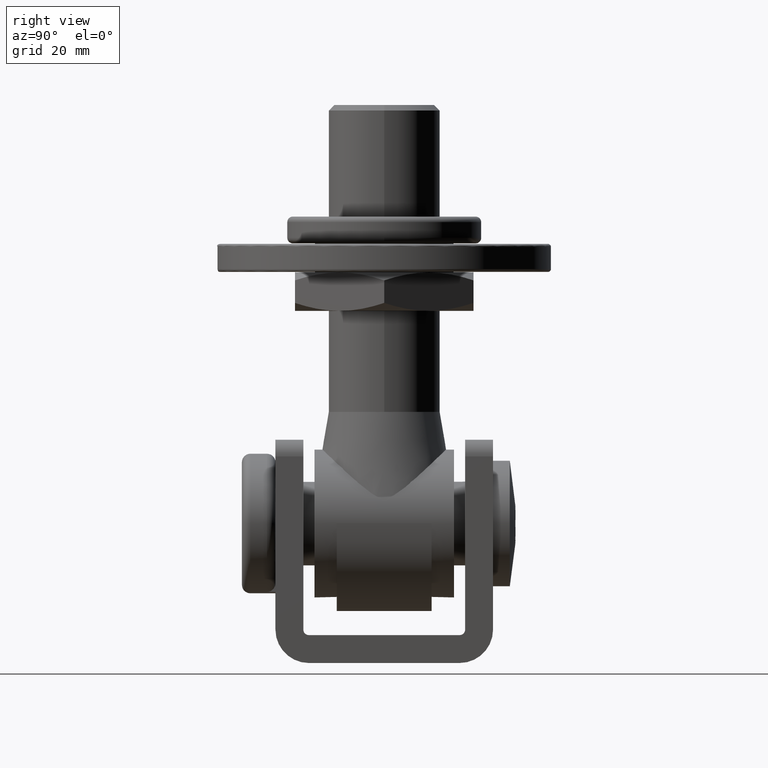
[diagram: clean part render]
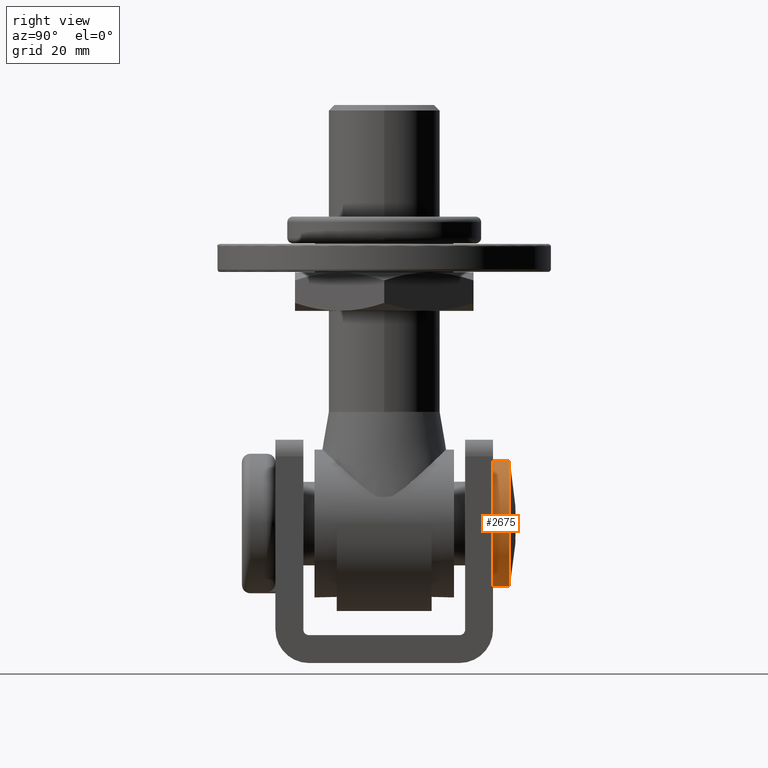
[diagram: same view with one face highlighted and labeled with its STEP entity id]
A machine part, right view. The second image highlights one B-rep face of the part: STEP entity #2675.
In plain terms, the highlighted cylindrical surface (bore or boss wall) has radius 11.25 mm, axis along (-0, -1, -0).
Its self-contained STEP definition (entity closure, byte-faithful):
#317 = CARTESIAN_POINT ( 'NONE',  ( 0.000000000000000000, 14.90000000000000036, -11.25000000000000000 ) ) ;
#1641 = CARTESIAN_POINT ( 'NONE',  ( 0.000000000000000000, 17.90000000000000568, -11.25000000000000355 ) ) ;
#2224 = DIRECTION ( 'NONE',  ( -0.000000000000000000, -1.000000000000000000, -0.000000000000000000 ) ) ;
#2675 = ADVANCED_FACE ( 'NONE', ( #6149, #13723 ), #7865, .T. ) ;
#2769 = CIRCLE ( 'NONE', #6624, 11.25000000000000355 ) ;
#3857 = EDGE_CURVE ( 'NONE', #15509, #15509, #2769, .T. ) ;
#4569 = CARTESIAN_POINT ( 'NONE',  ( 0.000000000000000000, 17.90000000000000568, 0.000000000000000000 ) ) ;
#5406 = DIRECTION ( 'NONE',  ( 0.000000000000000000, 0.000000000000000000, -1.000000000000000000 ) ) ;
#5664 = CIRCLE ( 'NONE', #14279, 11.25000000000000000 ) ;
#5841 = ORIENTED_EDGE ( 'NONE', *, *, #3857, .T. ) ;
#6149 = FACE_OUTER_BOUND ( 'NONE', #13638, .T. ) ;
#6396 = AXIS2_PLACEMENT_3D ( 'NONE', #15155, #10026, #5406 ) ;
#6624 = AXIS2_PLACEMENT_3D ( 'NONE', #4569, #2224, #11878 ) ;
#7865 = CYLINDRICAL_SURFACE ( 'NONE', #6396, 11.25000000000000178 ) ;
#8005 = CARTESIAN_POINT ( 'NONE',  ( 0.000000000000000000, 14.90000000000000036, 0.000000000000000000 ) ) ;
#8120 = EDGE_LOOP ( 'NONE', ( #14210 ) ) ;
#10026 = DIRECTION ( 'NONE',  ( -0.000000000000000000, -1.000000000000000000, -0.000000000000000000 ) ) ;
#11051 = VERTEX_POINT ( 'NONE', #317 ) ;
#11718 = DIRECTION ( 'NONE',  ( -0.000000000000000000, -1.000000000000000000, -0.000000000000000000 ) ) ;
#11878 = DIRECTION ( 'NONE',  ( 0.000000000000000000, 0.000000000000000000, -1.000000000000000000 ) ) ;
#13638 = EDGE_LOOP ( 'NONE', ( #5841 ) ) ;
#13723 = FACE_OUTER_BOUND ( 'NONE', #8120, .T. ) ;
#13979 = DIRECTION ( 'NONE',  ( 0.000000000000000000, 0.000000000000000000, -1.000000000000000000 ) ) ;
#14210 = ORIENTED_EDGE ( 'NONE', *, *, #15207, .F. ) ;
#14279 = AXIS2_PLACEMENT_3D ( 'NONE', #8005, #11718, #13979 ) ;
#15155 = CARTESIAN_POINT ( 'NONE',  ( 0.000000000000000000, 0.000000000000000000, 0.000000000000000000 ) ) ;
#15207 = EDGE_CURVE ( 'NONE', #11051, #11051, #5664, .T. ) ;
#15509 = VERTEX_POINT ( 'NONE', #1641 ) ;